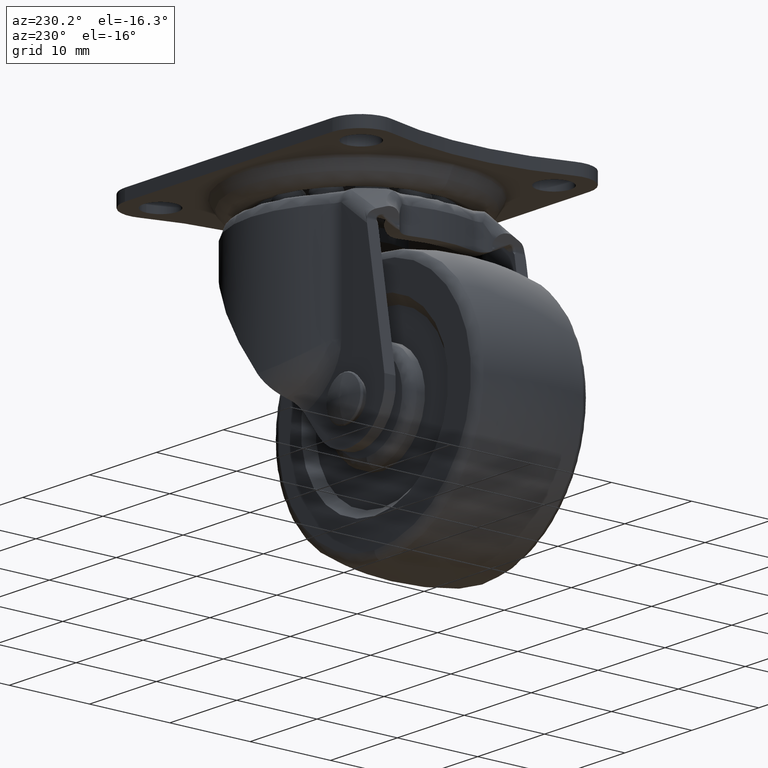
[diagram: clean part render]
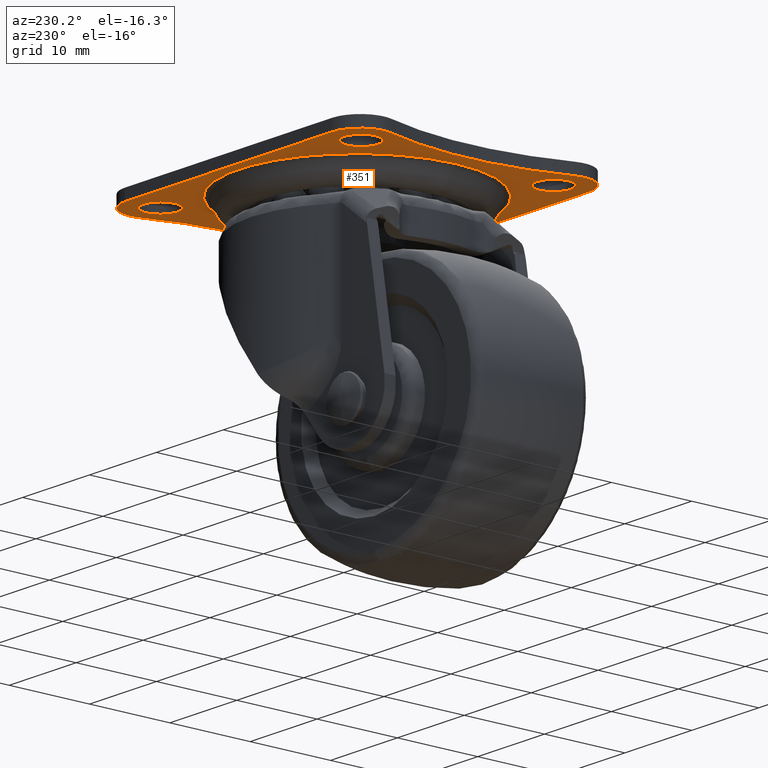
[diagram: same view with one face highlighted and labeled with its STEP entity id]
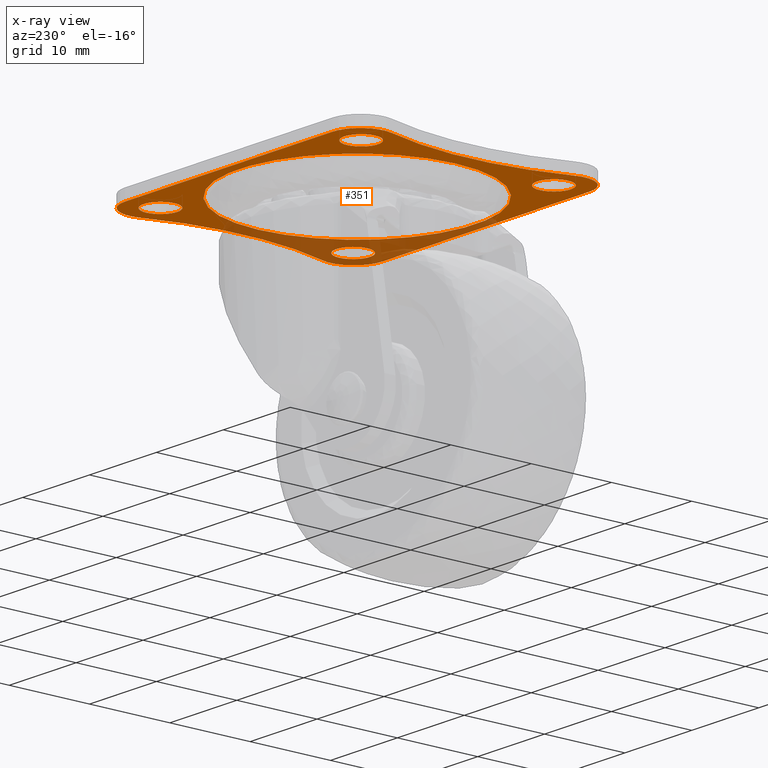
[diagram: x-ray of the same camera — body ghosted, the highlighted face saturated]
A machine part, auxiliary view. The second image highlights one B-rep face of the part: STEP entity #351.
The next image is the same camera in x-ray: the body ghosted, the highlighted face saturated — about 28% of this face is hidden behind the body in this view.
In plain terms, the highlighted planar face has unit normal (0, 0, -1).
Its self-contained STEP definition (entity closure, byte-faithful):
#351=ADVANCED_FACE('',(#1772,#1773,#1774,#1775,#1776,#1777),#1771,.T.);
#1771=PLANE('',#4539);
#1772=FACE_OUTER_BOUND('',#4540,.T.);
#1773=FACE_BOUND('',#4541,.T.);
#1774=FACE_BOUND('',#4542,.T.);
#1775=FACE_BOUND('',#4543,.T.);
#1776=FACE_BOUND('',#4544,.T.);
#1777=FACE_BOUND('',#4545,.T.);
#4536=CARTESIAN_POINT('',(-2.44823050854E+01,1.92000000000E+01,-1.40000000000E+00));
#4537=DIRECTION('',(0.00000000000E+00,0.00000000000E+00,-1.00000000000E+00));
#4538=DIRECTION('',(1.00000000000E+00,0.00000000000E+00,0.00000000000E+00));
#4539=AXIS2_PLACEMENT_3D('',#4536,#4537,#4538);
#4540=EDGE_LOOP('',(#6111,#6112,#6113,#6114,#6115,#6116,#6117,#6118));
#4541=EDGE_LOOP('',(#6119,#6120));
#4542=EDGE_LOOP('',(#6121,#6122));
#4543=EDGE_LOOP('',(#6123,#6124));
#4544=EDGE_LOOP('',(#6125,#6126));
#4545=EDGE_LOOP('',(#6127,#6128));
#6111=ORIENTED_EDGE('',*,*,#6977,.F.);
#6112=ORIENTED_EDGE('',*,*,#6981,.T.);
#6113=ORIENTED_EDGE('',*,*,#6982,.F.);
#6114=ORIENTED_EDGE('',*,*,#6984,.F.);
#6115=ORIENTED_EDGE('',*,*,#6986,.F.);
#6116=ORIENTED_EDGE('',*,*,#6989,.T.);
#6117=ORIENTED_EDGE('',*,*,#6990,.F.);
#6118=ORIENTED_EDGE('',*,*,#6992,.F.);
#6119=ORIENTED_EDGE('',*,*,#6993,.T.);
#6120=ORIENTED_EDGE('',*,*,#6994,.T.);
#6121=ORIENTED_EDGE('',*,*,#6995,.T.);
#6122=ORIENTED_EDGE('',*,*,#6996,.T.);
#6123=ORIENTED_EDGE('',*,*,#6997,.T.);
#6124=ORIENTED_EDGE('',*,*,#6998,.T.);
#6125=ORIENTED_EDGE('',*,*,#6999,.T.);
#6126=ORIENTED_EDGE('',*,*,#7000,.T.);
#6127=ORIENTED_EDGE('',*,*,#7001,.T.);
#6128=ORIENTED_EDGE('',*,*,#7002,.T.);
#6977=EDGE_CURVE('',#9413,#9414,#9415,.T.);
#6981=EDGE_CURVE('',#9413,#9433,#9440,.T.);
#6982=EDGE_CURVE('',#9446,#9433,#9447,.T.);
#6984=EDGE_CURVE('',#9459,#9446,#9460,.T.);
#6986=EDGE_CURVE('',#9472,#9459,#9473,.T.);
#6989=EDGE_CURVE('',#9472,#9485,#9492,.T.);
#6990=EDGE_CURVE('',#9498,#9485,#9499,.T.);
#6992=EDGE_CURVE('',#9414,#9498,#9511,.T.);
#6993=EDGE_CURVE('',#9517,#9518,#9519,.T.);
#6994=EDGE_CURVE('',#9518,#9517,#9525,.T.);
#6995=EDGE_CURVE('',#9531,#9532,#9533,.T.);
#6996=EDGE_CURVE('',#9532,#9531,#9539,.T.);
#6997=EDGE_CURVE('',#9545,#9546,#9547,.T.);
#6998=EDGE_CURVE('',#9546,#9545,#9553,.T.);
#6999=EDGE_CURVE('',#9559,#9560,#9561,.T.);
#7000=EDGE_CURVE('',#9560,#9559,#9567,.T.);
#7001=EDGE_CURVE('',#9573,#9574,#9575,.T.);
#7002=EDGE_CURVE('',#9574,#9573,#9581,.T.);
#9413=VERTEX_POINT('',#13001);
#9414=VERTEX_POINT('',#13002);
#9415=CIRCLE('',#13006,3.50000000000E+00);
#9433=VERTEX_POINT('',#13013);
#9440=CIRCLE('',#13020,3.50000189941E+01);
#9446=VERTEX_POINT('',#13021);
#9447=CIRCLE('',#13025,3.50000000000E+00);
#9459=VERTEX_POINT('',#13029);
#9460=LINE('',#13030,#13031);
#9472=VERTEX_POINT('',#13036);
#9473=CIRCLE('',#13040,3.50000000000E+00);
#9485=VERTEX_POINT('',#13044);
#9492=CIRCLE('',#13051,3.50000189941E+01);
#9498=VERTEX_POINT('',#13052);
#9499=CIRCLE('',#13056,3.50000000000E+00);
#9511=LINE('',#13060,#13061);
#9517=VERTEX_POINT('',#13063);
#9518=VERTEX_POINT('',#13064);
#9519=CIRCLE('',#13068,2.10000000000E+00);
#9525=CIRCLE('',#13072,2.10000000000E+00);
#9531=VERTEX_POINT('',#13073);
#9532=VERTEX_POINT('',#13074);
#9533=CIRCLE('',#13078,2.10000000000E+00);
#9539=CIRCLE('',#13082,2.10000000000E+00);
#9545=VERTEX_POINT('',#13083);
#9546=VERTEX_POINT('',#13084);
#9547=CIRCLE('',#13088,2.10000000000E+00);
#9553=CIRCLE('',#13092,2.10000000000E+00);
#9559=VERTEX_POINT('',#13093);
#9560=VERTEX_POINT('',#13094);
#9561=CIRCLE('',#13098,2.10000000000E+00);
#9567=CIRCLE('',#13102,2.10000000000E+00);
#9573=VERTEX_POINT('',#13103);
#9574=VERTEX_POINT('',#13104);
#9575=CIRCLE('',#13108,1.47177857052E+01);
#9581=CIRCLE('',#13112,1.47177857052E+01);
#13001=CARTESIAN_POINT('',(1.88103893661E+01,1.13636363940E+01,-1.40000000000E+00));
#13002=CARTESIAN_POINT('',(1.55000000000E+01,1.60000000000E+01,-1.40000000000E+00));
#13003=CARTESIAN_POINT('',(1.55000000000E+01,1.25000000000E+01,-1.40000000000E+00));
#13004=DIRECTION('',(0.00000000000E+00,-0.00000000000E+00,1.00000000000E+00));
#13005=DIRECTION('',(-1.83690953073E-16,1.00000000000E+00,0.00000000000E+00));
#13006=AXIS2_PLACEMENT_3D('',#13003,#13004,#13005);
#13013=CARTESIAN_POINT('',(1.88103892723E+01,-1.13636361209E+01,-1.40000000000E+00));
#13017=CARTESIAN_POINT('',(5.19143029941E+01,-7.77469793134E-14,-1.40000000000E+00));
#13018=DIRECTION('',(0.00000000000E+00,-0.00000000000E+00,1.00000000000E+00));
#13019=DIRECTION('',(1.00000000000E+00,-0.00000000000E+00,-0.00000000000E+00));
#13020=AXIS2_PLACEMENT_3D('',#13017,#13018,#13019);
#13021=CARTESIAN_POINT('',(1.55000000000E+01,-1.60000000000E+01,-1.40000000000E+00));
#13022=CARTESIAN_POINT('',(1.55000000000E+01,-1.25000000000E+01,-1.40000000000E+00));
#13023=DIRECTION('',(-0.00000000000E+00,0.00000000000E+00,1.00000000000E+00));
#13024=DIRECTION('',(9.45825506375E-01,3.24675394032E-01,0.00000000000E+00));
#13025=AXIS2_PLACEMENT_3D('',#13022,#13023,#13024);
#13029=CARTESIAN_POINT('',(-1.55000030543E+01,-1.60000000000E+01,-1.40000000000E+00));
#13030=CARTESIAN_POINT('',(-1.55000030543E+01,-1.60000000000E+01,-1.40000000000E+00));
#13031=VECTOR('',#13032,3.10000030543E+01);
#13032=DIRECTION('',(1.00000000000E+00,0.00000000000E+00,0.00000000000E+00));
#13036=CARTESIAN_POINT('',(-1.88103894706E+01,-1.13636366987E+01,-1.40000000000E+00));
#13037=CARTESIAN_POINT('',(-1.55000000000E+01,-1.25000000000E+01,-1.40000000000E+00));
#13038=DIRECTION('',(0.00000000000E+00,-0.00000000000E+00,1.00000000000E+00));
#13039=DIRECTION('',(1.00000000000E+00,-0.00000000000E+00,-0.00000000000E+00));
#13040=AXIS2_PLACEMENT_3D('',#13037,#13038,#13039);
#13044=CARTESIAN_POINT('',(-1.88103898673E+01,1.13636378542E+01,-1.40000000000E+00));
#13048=CARTESIAN_POINT('',(-5.19143029941E+01,1.22855027027E-13,-1.40000000000E+00));
#13049=DIRECTION('',(-0.00000000000E+00,0.00000000000E+00,1.00000000000E+00));
#13050=DIRECTION('',(9.45825576048E-01,3.24675191065E-01,0.00000000000E+00));
#13051=AXIS2_PLACEMENT_3D('',#13048,#13049,#13050);
#13052=CARTESIAN_POINT('',(-1.55000000000E+01,1.60000000000E+01,-1.40000000000E+00));
#13053=CARTESIAN_POINT('',(-1.55000000000E+01,1.25000000000E+01,-1.40000000000E+00));
#13054=DIRECTION('',(0.00000000000E+00,-0.00000000000E+00,1.00000000000E+00));
#13055=DIRECTION('',(1.00000000000E+00,-0.00000000000E+00,-0.00000000000E+00));
#13056=AXIS2_PLACEMENT_3D('',#13053,#13054,#13055);
#13060=CARTESIAN_POINT('',(1.55000000000E+01,1.60000000000E+01,-1.40000000000E+00));
#13061=VECTOR('',#13062,3.10000000000E+01);
#13062=DIRECTION('',(-1.00000000000E+00,0.00000000000E+00,0.00000000000E+00));
#13063=CARTESIAN_POINT('',(-1.71000000000E+01,1.20000000000E+01,-1.40000000000E+00));
#13064=CARTESIAN_POINT('',(-1.29000000000E+01,1.20000000000E+01,-1.40000000000E+00));
#13065=CARTESIAN_POINT('',(-1.50000000000E+01,1.20000000000E+01,-1.40000000000E+00));
#13066=DIRECTION('',(0.00000000000E+00,0.00000000000E+00,1.00000000000E+00));
#13067=DIRECTION('',(-1.00000000000E+00,-1.22460635382E-16,0.00000000000E+00));
#13068=AXIS2_PLACEMENT_3D('',#13065,#13066,#13067);
#13069=CARTESIAN_POINT('',(-1.50000000000E+01,1.20000000000E+01,-1.40000000000E+00));
#13070=DIRECTION('',(0.00000000000E+00,0.00000000000E+00,1.00000000000E+00));
#13071=DIRECTION('',(-1.00000000000E+00,-1.22460635382E-16,0.00000000000E+00));
#13072=AXIS2_PLACEMENT_3D('',#13069,#13070,#13071);
#13073=CARTESIAN_POINT('',(-1.71000000000E+01,-1.20000000000E+01,-1.40000000000E+00));
#13074=CARTESIAN_POINT('',(-1.29000000000E+01,-1.20000000000E+01,-1.40000000000E+00));
#13075=CARTESIAN_POINT('',(-1.50000000000E+01,-1.20000000000E+01,-1.40000000000E+00));
#13076=DIRECTION('',(0.00000000000E+00,0.00000000000E+00,1.00000000000E+00));
#13077=DIRECTION('',(-1.00000000000E+00,-1.22460635382E-16,0.00000000000E+00));
#13078=AXIS2_PLACEMENT_3D('',#13075,#13076,#13077);
#13079=CARTESIAN_POINT('',(-1.50000000000E+01,-1.20000000000E+01,-1.40000000000E+00));
#13080=DIRECTION('',(0.00000000000E+00,0.00000000000E+00,1.00000000000E+00));
#13081=DIRECTION('',(-1.00000000000E+00,-1.22460635382E-16,0.00000000000E+00));
#13082=AXIS2_PLACEMENT_3D('',#13079,#13080,#13081);
#13083=CARTESIAN_POINT('',(1.29000000000E+01,-1.20000000000E+01,-1.40000000000E+00));
#13084=CARTESIAN_POINT('',(1.71000000000E+01,-1.20000000000E+01,-1.40000000000E+00));
#13085=CARTESIAN_POINT('',(1.50000000000E+01,-1.20000000000E+01,-1.40000000000E+00));
#13086=DIRECTION('',(0.00000000000E+00,0.00000000000E+00,1.00000000000E+00));
#13087=DIRECTION('',(-1.00000000000E+00,-1.22460635382E-16,0.00000000000E+00));
#13088=AXIS2_PLACEMENT_3D('',#13085,#13086,#13087);
#13089=CARTESIAN_POINT('',(1.50000000000E+01,-1.20000000000E+01,-1.40000000000E+00));
#13090=DIRECTION('',(0.00000000000E+00,0.00000000000E+00,1.00000000000E+00));
#13091=DIRECTION('',(-1.00000000000E+00,-1.22460635382E-16,0.00000000000E+00));
#13092=AXIS2_PLACEMENT_3D('',#13089,#13090,#13091);
#13093=CARTESIAN_POINT('',(1.29000000000E+01,1.20000000000E+01,-1.40000000000E+00));
#13094=CARTESIAN_POINT('',(1.71000000000E+01,1.20000000000E+01,-1.40000000000E+00));
#13095=CARTESIAN_POINT('',(1.50000000000E+01,1.20000000000E+01,-1.40000000000E+00));
#13096=DIRECTION('',(0.00000000000E+00,0.00000000000E+00,1.00000000000E+00));
#13097=DIRECTION('',(-1.00000000000E+00,-1.22460635382E-16,0.00000000000E+00));
#13098=AXIS2_PLACEMENT_3D('',#13095,#13096,#13097);
#13099=CARTESIAN_POINT('',(1.50000000000E+01,1.20000000000E+01,-1.40000000000E+00));
#13100=DIRECTION('',(0.00000000000E+00,0.00000000000E+00,1.00000000000E+00));
#13101=DIRECTION('',(-1.00000000000E+00,-1.22460635382E-16,0.00000000000E+00));
#13102=AXIS2_PLACEMENT_3D('',#13099,#13100,#13101);
#13103=CARTESIAN_POINT('',(-1.47177857052E+01,0.00000000000E+00,-1.40000000000E+00));
#13104=CARTESIAN_POINT('',(1.47177857052E+01,2.96059473233E-15,-1.40000000000E+00));
#13105=CARTESIAN_POINT('',(0.00000000000E+00,0.00000000000E+00,-1.40000000000E+00));
#13106=DIRECTION('',(0.00000000000E+00,0.00000000000E+00,1.00000000000E+00));
#13107=DIRECTION('',(-1.00000000000E+00,-1.22460635382E-16,0.00000000000E+00));
#13108=AXIS2_PLACEMENT_3D('',#13105,#13106,#13107);
#13109=CARTESIAN_POINT('',(0.00000000000E+00,0.00000000000E+00,-1.40000000000E+00));
#13110=DIRECTION('',(0.00000000000E+00,0.00000000000E+00,1.00000000000E+00));
#13111=DIRECTION('',(-1.00000000000E+00,-1.22460635382E-16,0.00000000000E+00));
#13112=AXIS2_PLACEMENT_3D('',#13109,#13110,#13111);